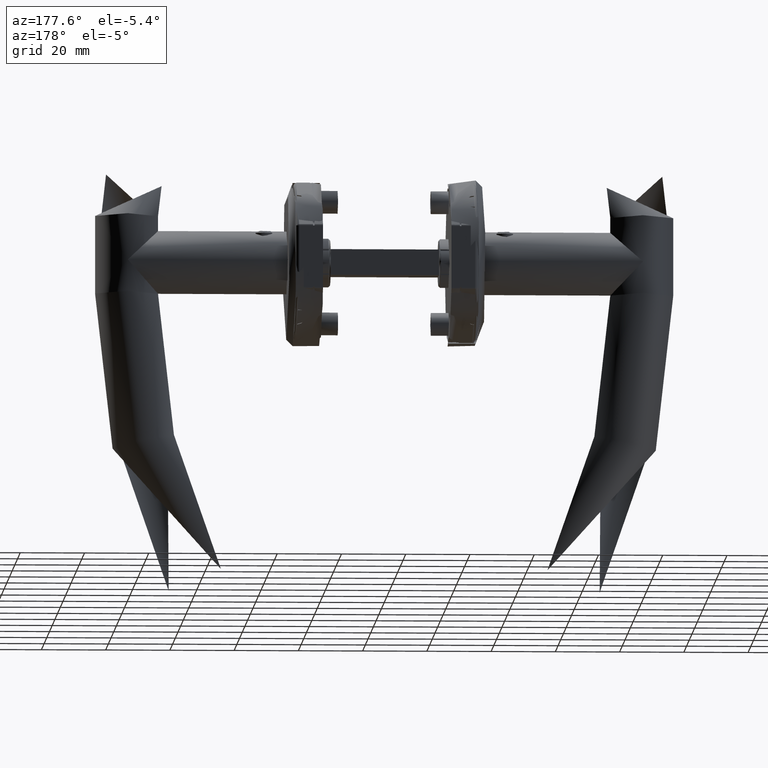
[diagram: clean part render]
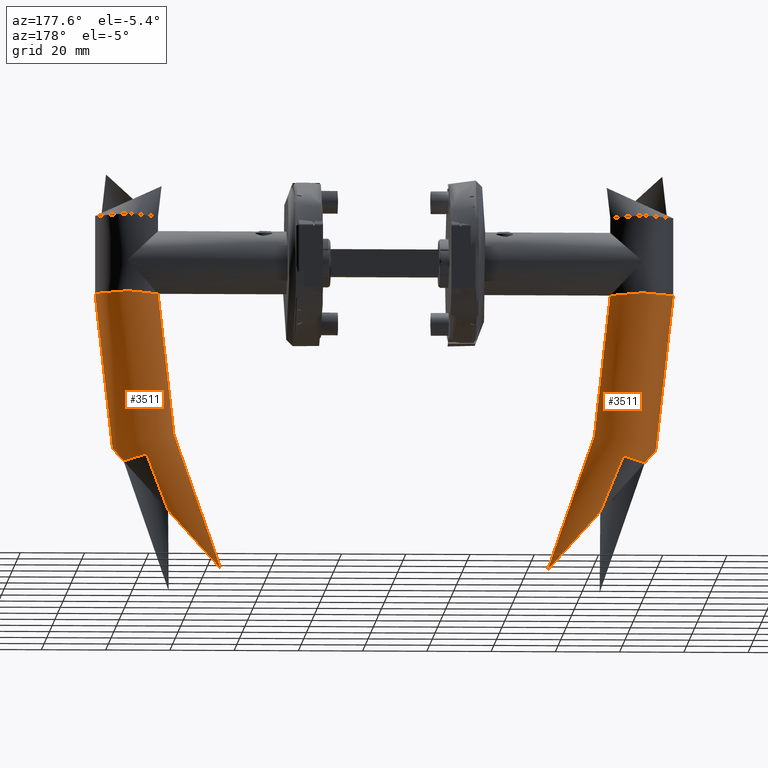
[diagram: same view with one multi-face feature highlighted, each face labeled with its STEP entity id]
A machine part, auxiliary view. The highlighted faces form ONE feature: a constant-radius fillet chain: 2 tangent blend faces with common blend radius 9.8 mm. The faces share edges in the B-rep.
Their STEP definitions:
[1] entity #3511 (Torus):
#88 = CARTESIAN_POINT ( 'NONE',  ( -105.9623395271451800, 4.342501961734758900, 21.72003861807346700 ) ) ;
#154 = CARTESIAN_POINT ( 'NONE',  ( -107.3131726879410800, 7.975893006506974600, 24.49681986952791100 ) ) ;
#242 = CIRCLE ( 'NONE', #2488, 9.800000000000009600 ) ;
#337 = CARTESIAN_POINT ( 'NONE',  ( -113.8759897534047800, 3.162745681215878500, 37.98604177043908700 ) ) ;
#401 = CARTESIAN_POINT ( 'NONE',  ( -112.6404120968331000, -7.385289563334011700, 35.44659419193390400 ) ) ;
#467 = CARTESIAN_POINT ( 'NONE',  ( -108.7015055869238000, 9.473321611347081700, 27.35058206978814300 ) ) ;
#526 = CARTESIAN_POINT ( 'NONE',  ( -106.5782364732321500, -6.476486939788888900, 22.98609377906233700 ) ) ;
#593 = CARTESIAN_POINT ( 'NONE',  ( -109.6697974633651600, -9.800096607207603200, 29.34087671548901400 ) ) ;
#1739 = CARTESIAN_POINT ( 'NONE',  ( -107.1992800815437600, 7.783234746974831500, 24.26270537596450800 ) ) ;
#1864 = CARTESIAN_POINT ( 'NONE',  ( -111.7104459602237400, 8.806204070088293500, 33.53521475938456600 ) ) ;
#1927 = CARTESIAN_POINT ( 'NONE',  ( -113.9857002070428100, -2.229797570106230700, 38.21152300826162200 ) ) ;
#1997 = CARTESIAN_POINT ( 'NONE',  ( -106.9784720455348300, -7.390388360363750100, 23.80881732285658700 ) ) ;
#2065 = CARTESIAN_POINT ( 'NONE',  ( -105.9627567024577100, -4.344504056624677100, 21.72089618291412100 ) ) ;
#2134 = CARTESIAN_POINT ( 'NONE',  ( -110.7821059145488200, -9.549288401787331200, 31.62713435447738800 ) ) ;
#2488 = AXIS2_PLACEMENT_3D ( 'NONE', #6560, #9671, #3456 ) ;
#3152 = CARTESIAN_POINT ( 'NONE',  ( -106.0946052358098400, 4.907340416496543500, 21.99192933579615100 ) ) ;
#3215 = CARTESIAN_POINT ( 'NONE',  ( -105.7481968135598400, 3.164019295167015900, 21.27983604697609000 ) ) ;
#3413 = CARTESIAN_POINT ( 'NONE',  ( -113.7156501658346200, 4.046955982191200900, 37.65650402863948900 ) ) ;
#3420 = EDGE_CURVE ( 'NONE', #9631, #9631, #242, .T. ) ;
#3456 = DIRECTION ( 'NONE',  ( 0.0000000000000000000, 1.151826858672363700E-033, -1.000000000000000000 ) ) ;
#3479 = CARTESIAN_POINT ( 'NONE',  ( -114.0960410210284400, 0.6397666363680479800, 38.43829946893545500 ) ) ;
#3511 = ADVANCED_FACE ( 'NONE', ( #17529, #4306 ), #3818, .T. ) ;
#3553 = CARTESIAN_POINT ( 'NONE',  ( -113.8219313557796000, -3.461376382604557400, 37.87493831712248500 ) ) ;
#3619 = CARTESIAN_POINT ( 'NONE',  ( -113.9579863478264600, 2.548235806558689600, 38.15456443698978700 ) ) ;
#3680 = CARTESIAN_POINT ( 'NONE',  ( -113.6558861264943100, 4.335938311313353400, 37.53367386977634400 ) ) ;
#3818 = TOROIDAL_SURFACE ( 'NONE', #7922, 208.0445454545454700, 9.799999999999997200 ) ;
#3938 = CARTESIAN_POINT ( 'NONE',  ( -105.5210396255808700, 7.047314121155778800E-016, 20.81287743109539800 ) ) ;
#4058 = CARTESIAN_POINT ( 'NONE',  ( -19.59999999999999100, -4.065758146820641600E-017, -157.8445454545456800 ) ) ;
#4306 = FACE_OUTER_BOUND ( 'NONE', #17210, .T. ) ;
#4663 = CARTESIAN_POINT ( 'NONE',  ( -106.4029977812082300, 5.988927555232736600, 22.62587020533610600 ) ) ;
#4924 = CARTESIAN_POINT ( 'NONE',  ( -108.0401836658072800, -8.933617571960491300, 25.99122678355904300 ) ) ;
#4989 = CARTESIAN_POINT ( 'NONE',  ( -110.9196255871230900, -9.470455030706631300, 31.90979032763020800 ) ) ;
#5054 = CARTESIAN_POINT ( 'NONE',  ( -110.0890711757591400, -9.799805428592550900, 30.20266775871953900 ) ) ;
#5118 = CARTESIAN_POINT ( 'NONE',  ( -113.6603429867153100, -4.350899035477192800, 37.54283401119376200 ) ) ;
#5195 = CARTESIAN_POINT ( 'NONE',  ( -112.6427865057234800, 7.380567998343508400, 35.45147431531874100 ) ) ;
#6129 = CARTESIAN_POINT ( 'NONE',  ( -105.5210396255808700, 7.047314121155778800E-016, 20.81287743109539800 ) ) ;
#6191 = CARTESIAN_POINT ( 'NONE',  ( -106.8772089378745600, 7.159162563841299200, 23.60066105548310100 ) ) ;
#6444 = CARTESIAN_POINT ( 'NONE',  ( -113.5285465630406900, -4.913424165470269500, 37.27195882179047000 ) ) ;
#6510 = CARTESIAN_POINT ( 'NONE',  ( -114.0684669655276300, 1.280466425776419100, 38.38162838061127500 ) ) ;
#6560 = CARTESIAN_POINT ( 'NONE',  ( -19.59999999999996600, 0.0000000000000000000, 50.20000000000006700 ) ) ;
#6587 = CARTESIAN_POINT ( 'NONE',  ( -106.1675678666241700, -5.185080569612953400, 22.14191388050648600 ) ) ;
#6655 = CARTESIAN_POINT ( 'NONE',  ( -113.5234881209240400, 4.902180014358160400, 37.26156195718879600 ) ) ;
#6722 = CARTESIAN_POINT ( 'NONE',  ( -111.9512566946696800, -8.494080924388324400, 34.03016109936260100 ) ) ;
#7708 = CARTESIAN_POINT ( 'NONE',  ( -106.9811044058094900, 7.374384440665487300, 23.81422758866263600 ) ) ;
#7774 = CARTESIAN_POINT ( 'NONE',  ( -108.2981640201506100, 9.177592109853778300, 26.52151128804995400 ) ) ;
#7898 = CARTESIAN_POINT ( 'NONE',  ( -110.7822611914154600, 9.549095972133811100, 31.62745349930808900 ) ) ;
#7922 = AXIS2_PLACEMENT_3D ( 'NONE', #4058, #19318, #10207 ) ;
#7964 = CARTESIAN_POINT ( 'NONE',  ( -107.1949605441036800, -7.795155883613743300, 24.25382738392443800 ) ) ;
#8037 = CARTESIAN_POINT ( 'NONE',  ( -109.2484227746456300, 9.737051676310125400, 28.47476118182042600 ) ) ;
#8101 = CARTESIAN_POINT ( 'NONE',  ( -111.4510222572800200, -9.068921336468031700, 33.00200768441730800 ) ) ;
#8175 = CARTESIAN_POINT ( 'NONE',  ( -113.0384158803404800, 6.475940026442631700, 36.26460787980328600 ) ) ;
#8376 = CARTESIAN_POINT ( 'NONE',  ( -105.7403702207520300, -3.160481969075049900, 21.26374754343318700 ) ) ;
#9002 = EDGE_LOOP ( 'NONE', ( #17225 ) ) ;
#9424 = CARTESIAN_POINT ( 'NONE',  ( -112.4221183688494000, 7.794492454045262700, 34.99793424553316600 ) ) ;
#9492 = CARTESIAN_POINT ( 'NONE',  ( -112.0730271484570700, -8.327438042216138900, 34.28043952361656500 ) ) ;
#9553 = CARTESIAN_POINT ( 'NONE',  ( -107.5433287310992500, -8.326970277623797000, 24.96992002279836600 ) ) ;
#9624 = CARTESIAN_POINT ( 'NONE',  ( -113.9516785010862500, -2.540167413894125900, 38.14160026451053700 ) ) ;
#9631 = VERTEX_POINT ( 'NONE', #13614 ) ;
#9671 = DIRECTION ( 'NONE',  ( 1.000000000000000000, 0.0000000000000000000, -2.775557561562878400E-017 ) ) ;
#9690 = CARTESIAN_POINT ( 'NONE',  ( -111.3206914484023100, 9.175635252252201100, 32.73413016710350800 ) ) ;
#9763 = CARTESIAN_POINT ( 'NONE',  ( -105.6592394030283500, -2.549847403412435700, 21.09697000345785200 ) ) ;
#9825 = B_SPLINE_CURVE_WITH_KNOTS ( 'NONE', 3,
 ( #6129, #18428, #18231, #12250, #13645, #3215, #16964, #88, #3152, #13717, #4663, #15242, #6191, #7708, #1739, #154, #13781, #16837, #7774, #10800, #467, #17096, #8037, #12443, #10986, #14180, #7898, #18543, #12713, #9690, #1864, #18484, #9424, #5195, #8175, #15642, #17158, #6655, #3680, #3413, #337, #3619, #6510, #3479, #14244, #14041, #1927, #9624, #15782, #3553, #5118, #6444, #12572, #10924, #14105, #18738, #401, #17228, #9492, #6722, #13975, #8101, #11054, #4989, #2134, #17031, #5054, #593, #12644, #11177, #12507, #18674, #18606, #4924, #15708, #15509, #9553, #7964, #1997, #526, #15576, #6587, #11116, #2065, #14583, #8376, #9763, #18998, #15981, #3938 ),
 .UNSPECIFIED., .T., .F.,
 ( 4, 2, 2, 1, 2, 2, 2, 2, 2, 2, 2, 2, 2, 2, 2, 2, 2, 2, 2, 2, 2, 2, 2, 2, 2, 2, 2, 2, 2, 2, 2, 1, 2, 2, 2, 2, 2, 2, 2, 2, 2, 2, 2, 2, 2, 4 ),
 ( 0.0000000000000000000, 0.001928615833146689100, 0.002892923749720032100, 0.003857231666293375500, 0.004821539582866719000, 0.005785847499440062400, 0.007714463332586754500, 0.008678771249160090200, 0.009643079165733427600, 0.01157169499888009700, 0.01253600291545344300, 0.01350031083202678700, 0.01542892666517344800, 0.01735754249832010800, 0.01832185041489344000, 0.01928615833146677200, 0.02121477416461343300, 0.02314338999776009400, 0.02507200583090675800, 0.02603631374748008000, 0.02700062166405340500, 0.02892923749720006200, 0.03085785333034671600, 0.03278646916349338400, 0.03375077708006671300, 0.03471508499664004200, 0.03664370082978670600, 0.03760800874636003500, 0.03857231666293336300, 0.04050093249608002800, 0.04146524041265334900, 0.04242954832922667100, 0.04339385624580000000, 0.04435816416237332200, 0.04628677999551999300, 0.04725108791209332900, 0.04821539582866665700, 0.05014401166181332200, 0.05110831957838663600, 0.05207262749495995100, 0.05400124332810657400, 0.05592985916125319700, 0.05689416707782651200, 0.05785847499439981900, 0.05978709082754643500, 0.06171570666069305100 ),
 .UNSPECIFIED. ) ;
#10207 = DIRECTION ( 'NONE',  ( 0.0000000000000000000, 3.889170968374537600E-034, -1.000000000000000000 ) ) ;
#10800 = CARTESIAN_POINT ( 'NONE',  ( -108.4318541954522000, 9.286834732237270600, 26.79631313981279600 ) ) ;
#10924 = CARTESIAN_POINT ( 'NONE',  ( -113.2108975698647800, -5.971294066628723300, 36.61910499807856200 ) ) ;
#10986 = CARTESIAN_POINT ( 'NONE',  ( -110.0919964575836200, 9.799836581198517700, 30.20868049674777800 ) ) ;
#11054 = CARTESIAN_POINT ( 'NONE',  ( -111.1879436916442600, -9.284258191927728300, 32.46128493227687500 ) ) ;
#11116 = CARTESIAN_POINT ( 'NONE',  ( -106.0955057805795100, -4.910963421853581100, 21.99378052940285900 ) ) ;
#11177 = CARTESIAN_POINT ( 'NONE',  ( -109.2487089822961400, -9.721537452678475700, 28.47534803754263100 ) ) ;
#12250 = CARTESIAN_POINT ( 'NONE',  ( -105.6317144258488100, 2.235795312702092600, 21.04038788607719500 ) ) ;
#12443 = CARTESIAN_POINT ( 'NONE',  ( -109.5266736960754300, 9.800162794244409200, 29.04669470884710600 ) ) ;
#12507 = CARTESIAN_POINT ( 'NONE',  ( -109.1087296554406700, -9.673980825789428200, 28.18762471151529400 ) ) ;
#12572 = CARTESIAN_POINT ( 'NONE',  ( -113.2950575039206700, -5.711870930661644000, 36.79207652544528200 ) ) ;
#12644 = CARTESIAN_POINT ( 'NONE',  ( -109.5296809762946600, -9.784613488056868000, 29.05287450824557600 ) ) ;
#12713 = CARTESIAN_POINT ( 'NONE',  ( -111.1868543072585000, 9.285126647020687700, 32.45904584671816200 ) ) ;
#12876 = ORIENTED_EDGE ( 'NONE', *, *, #3420, .F. ) ;
#13614 = CARTESIAN_POINT ( 'NONE',  ( -19.59999999999998000, 0.0000000000000000000, 40.39999999999999100 ) ) ;
#13645 = CARTESIAN_POINT ( 'NONE',  ( -105.6663721811650000, 2.550324093523725000, 21.11163253954658700 ) ) ;
#13717 = CARTESIAN_POINT ( 'NONE',  ( -106.1674633134749300, 5.184910772034133900, 22.14169896152793600 ) ) ;
#13781 = CARTESIAN_POINT ( 'NONE',  ( -107.6630217176956000, 8.509130808368395200, 25.21595642441350500 ) ) ;
#13975 = CARTESIAN_POINT ( 'NONE',  ( -111.7037632791850100, -8.796092872902860900, 33.52147829111963500 ) ) ;
#14041 = CARTESIAN_POINT ( 'NONE',  ( -114.0676347629579700, -1.290852283934095000, 38.37991800694239700 ) ) ;
#14105 = CARTESIAN_POINT ( 'NONE',  ( -113.0315285533222500, -6.470338420177319500, 36.25045176016756400 ) ) ;
#14180 = CARTESIAN_POINT ( 'NONE',  ( -110.3715532891084800, 9.735983427800489300, 30.78328608986587200 ) ) ;
#14244 = CARTESIAN_POINT ( 'NONE',  ( -114.0956148235026000, -0.6545180740965332900, 38.43742353323609300 ) ) ;
#14583 = CARTESIAN_POINT ( 'NONE',  ( -105.9018936965907900, -4.050848741572023600, 21.59578336221342500 ) ) ;
#15242 = CARTESIAN_POINT ( 'NONE',  ( -106.5806595600296000, 6.482021291849427800, 22.99107467210709600 ) ) ;
#15509 = CARTESIAN_POINT ( 'NONE',  ( -107.6634197290271100, -8.491593055440638700, 25.21677349755965700 ) ) ;
#15576 = CARTESIAN_POINT ( 'NONE',  ( -106.4004660538973200, -5.980656712907377300, 22.62066592257155800 ) ) ;
#15642 = CARTESIAN_POINT ( 'NONE',  ( -113.2157281594310700, 5.982804266781807100, 36.62903355750746900 ) ) ;
#15708 = CARTESIAN_POINT ( 'NONE',  ( -107.9117334529276500, -8.794919568044738500, 25.72719308417332600 ) ) ;
#15782 = CARTESIAN_POINT ( 'NONE',  ( -113.8699059692394400, -3.155563058425698800, 37.97353788923025800 ) ) ;
#15981 = CARTESIAN_POINT ( 'NONE',  ( -105.5210396255808700, -0.6472253104190791600, 20.81287743109540500 ) ) ;
#16016 = CARTESIAN_POINT ( 'NONE',  ( -105.5210396255808500, 0.0000000000000000000, 20.81287743109539800 ) ) ;
#16837 = CARTESIAN_POINT ( 'NONE',  ( -107.9092549429647100, 8.809616499370088500, 25.72209979227271100 ) ) ;
#16964 = CARTESIAN_POINT ( 'NONE',  ( -105.8427484108795900, 3.765387154636616900, 21.47420156616516700 ) ) ;
#17031 = CARTESIAN_POINT ( 'NONE',  ( -110.3671629105176200, -9.737735587279161100, 30.77426210150836600 ) ) ;
#17096 = CARTESIAN_POINT ( 'NONE',  ( -108.8374309692694300, 9.550787657906278500, 27.62997551162523300 ) ) ;
#17158 = CARTESIAN_POINT ( 'NONE',  ( -113.4504071521652500, 5.180803001728215800, 37.11136149238267000 ) ) ;
#17210 = EDGE_LOOP ( 'NONE', ( #12876 ) ) ;
#17225 = ORIENTED_EDGE ( 'NONE', *, *, #18309, .T. ) ;
#17228 = CARTESIAN_POINT ( 'NONE',  ( -112.4245428801910800, -7.790612413520406700, 35.00291738695224800 ) ) ;
#17529 = FACE_OUTER_BOUND ( 'NONE', #9002, .T. ) ;
#18231 = CARTESIAN_POINT ( 'NONE',  ( -105.5488157405756500, 1.287048662271211200, 20.86997600253950200 ) ) ;
#18309 = EDGE_CURVE ( 'NONE', #18854, #18854, #9825, .T. ) ;
#18428 = CARTESIAN_POINT ( 'NONE',  ( -105.5210396255808800, 0.6472253104191035800, 20.81287743109539100 ) ) ;
#18484 = CARTESIAN_POINT ( 'NONE',  ( -111.9566326409931200, 8.505014669663284000, 34.04121137350064400 ) ) ;
#18543 = CARTESIAN_POINT ( 'NONE',  ( -110.9179504117639400, 9.471503853492317000, 31.90634720321920500 ) ) ;
#18606 = CARTESIAN_POINT ( 'NONE',  ( -108.4293351244981800, -9.301461401277244100, 26.79113647168205500 ) ) ;
#18674 = CARTESIAN_POINT ( 'NONE',  ( -108.6964877548678600, -9.486425250784762400, 27.34026942841878600 ) ) ;
#18738 = CARTESIAN_POINT ( 'NONE',  ( -112.9371560997596500, -6.707823522771136900, 36.05648955648684500 ) ) ;
#18854 = VERTEX_POINT ( 'NONE', #16016 ) ;
#18998 = CARTESIAN_POINT ( 'NONE',  ( -105.5494172839514600, -1.294890510834880300, 20.87121257467251600 ) ) ;
#19318 = DIRECTION ( 'NONE',  ( 0.0000000000000000000, -1.000000000000000000, -3.889170968374537600E-034 ) ) ;
[2] entity #3511 (Torus):
#88 = CARTESIAN_POINT ( 'NONE',  ( -105.9623395271451800, 4.342501961734758900, 21.72003861807346700 ) ) ;
#154 = CARTESIAN_POINT ( 'NONE',  ( -107.3131726879410800, 7.975893006506974600, 24.49681986952791100 ) ) ;
#242 = CIRCLE ( 'NONE', #2488, 9.800000000000009600 ) ;
#337 = CARTESIAN_POINT ( 'NONE',  ( -113.8759897534047800, 3.162745681215878500, 37.98604177043908700 ) ) ;
#401 = CARTESIAN_POINT ( 'NONE',  ( -112.6404120968331000, -7.385289563334011700, 35.44659419193390400 ) ) ;
#467 = CARTESIAN_POINT ( 'NONE',  ( -108.7015055869238000, 9.473321611347081700, 27.35058206978814300 ) ) ;
#526 = CARTESIAN_POINT ( 'NONE',  ( -106.5782364732321500, -6.476486939788888900, 22.98609377906233700 ) ) ;
#593 = CARTESIAN_POINT ( 'NONE',  ( -109.6697974633651600, -9.800096607207603200, 29.34087671548901400 ) ) ;
#1739 = CARTESIAN_POINT ( 'NONE',  ( -107.1992800815437600, 7.783234746974831500, 24.26270537596450800 ) ) ;
#1864 = CARTESIAN_POINT ( 'NONE',  ( -111.7104459602237400, 8.806204070088293500, 33.53521475938456600 ) ) ;
#1927 = CARTESIAN_POINT ( 'NONE',  ( -113.9857002070428100, -2.229797570106230700, 38.21152300826162200 ) ) ;
#1997 = CARTESIAN_POINT ( 'NONE',  ( -106.9784720455348300, -7.390388360363750100, 23.80881732285658700 ) ) ;
#2065 = CARTESIAN_POINT ( 'NONE',  ( -105.9627567024577100, -4.344504056624677100, 21.72089618291412100 ) ) ;
#2134 = CARTESIAN_POINT ( 'NONE',  ( -110.7821059145488200, -9.549288401787331200, 31.62713435447738800 ) ) ;
#2488 = AXIS2_PLACEMENT_3D ( 'NONE', #6560, #9671, #3456 ) ;
#3152 = CARTESIAN_POINT ( 'NONE',  ( -106.0946052358098400, 4.907340416496543500, 21.99192933579615100 ) ) ;
#3215 = CARTESIAN_POINT ( 'NONE',  ( -105.7481968135598400, 3.164019295167015900, 21.27983604697609000 ) ) ;
#3413 = CARTESIAN_POINT ( 'NONE',  ( -113.7156501658346200, 4.046955982191200900, 37.65650402863948900 ) ) ;
#3420 = EDGE_CURVE ( 'NONE', #9631, #9631, #242, .T. ) ;
#3456 = DIRECTION ( 'NONE',  ( 0.0000000000000000000, 1.151826858672363700E-033, -1.000000000000000000 ) ) ;
#3479 = CARTESIAN_POINT ( 'NONE',  ( -114.0960410210284400, 0.6397666363680479800, 38.43829946893545500 ) ) ;
#3511 = ADVANCED_FACE ( 'NONE', ( #17529, #4306 ), #3818, .T. ) ;
#3553 = CARTESIAN_POINT ( 'NONE',  ( -113.8219313557796000, -3.461376382604557400, 37.87493831712248500 ) ) ;
#3619 = CARTESIAN_POINT ( 'NONE',  ( -113.9579863478264600, 2.548235806558689600, 38.15456443698978700 ) ) ;
#3680 = CARTESIAN_POINT ( 'NONE',  ( -113.6558861264943100, 4.335938311313353400, 37.53367386977634400 ) ) ;
#3818 = TOROIDAL_SURFACE ( 'NONE', #7922, 208.0445454545454700, 9.799999999999997200 ) ;
#3938 = CARTESIAN_POINT ( 'NONE',  ( -105.5210396255808700, 7.047314121155778800E-016, 20.81287743109539800 ) ) ;
#4058 = CARTESIAN_POINT ( 'NONE',  ( -19.59999999999999100, -4.065758146820641600E-017, -157.8445454545456800 ) ) ;
#4306 = FACE_OUTER_BOUND ( 'NONE', #17210, .T. ) ;
#4663 = CARTESIAN_POINT ( 'NONE',  ( -106.4029977812082300, 5.988927555232736600, 22.62587020533610600 ) ) ;
#4924 = CARTESIAN_POINT ( 'NONE',  ( -108.0401836658072800, -8.933617571960491300, 25.99122678355904300 ) ) ;
#4989 = CARTESIAN_POINT ( 'NONE',  ( -110.9196255871230900, -9.470455030706631300, 31.90979032763020800 ) ) ;
#5054 = CARTESIAN_POINT ( 'NONE',  ( -110.0890711757591400, -9.799805428592550900, 30.20266775871953900 ) ) ;
#5118 = CARTESIAN_POINT ( 'NONE',  ( -113.6603429867153100, -4.350899035477192800, 37.54283401119376200 ) ) ;
#5195 = CARTESIAN_POINT ( 'NONE',  ( -112.6427865057234800, 7.380567998343508400, 35.45147431531874100 ) ) ;
#6129 = CARTESIAN_POINT ( 'NONE',  ( -105.5210396255808700, 7.047314121155778800E-016, 20.81287743109539800 ) ) ;
#6191 = CARTESIAN_POINT ( 'NONE',  ( -106.8772089378745600, 7.159162563841299200, 23.60066105548310100 ) ) ;
#6444 = CARTESIAN_POINT ( 'NONE',  ( -113.5285465630406900, -4.913424165470269500, 37.27195882179047000 ) ) ;
#6510 = CARTESIAN_POINT ( 'NONE',  ( -114.0684669655276300, 1.280466425776419100, 38.38162838061127500 ) ) ;
#6560 = CARTESIAN_POINT ( 'NONE',  ( -19.59999999999996600, 0.0000000000000000000, 50.20000000000006700 ) ) ;
#6587 = CARTESIAN_POINT ( 'NONE',  ( -106.1675678666241700, -5.185080569612953400, 22.14191388050648600 ) ) ;
#6655 = CARTESIAN_POINT ( 'NONE',  ( -113.5234881209240400, 4.902180014358160400, 37.26156195718879600 ) ) ;
#6722 = CARTESIAN_POINT ( 'NONE',  ( -111.9512566946696800, -8.494080924388324400, 34.03016109936260100 ) ) ;
#7708 = CARTESIAN_POINT ( 'NONE',  ( -106.9811044058094900, 7.374384440665487300, 23.81422758866263600 ) ) ;
#7774 = CARTESIAN_POINT ( 'NONE',  ( -108.2981640201506100, 9.177592109853778300, 26.52151128804995400 ) ) ;
#7898 = CARTESIAN_POINT ( 'NONE',  ( -110.7822611914154600, 9.549095972133811100, 31.62745349930808900 ) ) ;
#7922 = AXIS2_PLACEMENT_3D ( 'NONE', #4058, #19318, #10207 ) ;
#7964 = CARTESIAN_POINT ( 'NONE',  ( -107.1949605441036800, -7.795155883613743300, 24.25382738392443800 ) ) ;
#8037 = CARTESIAN_POINT ( 'NONE',  ( -109.2484227746456300, 9.737051676310125400, 28.47476118182042600 ) ) ;
#8101 = CARTESIAN_POINT ( 'NONE',  ( -111.4510222572800200, -9.068921336468031700, 33.00200768441730800 ) ) ;
#8175 = CARTESIAN_POINT ( 'NONE',  ( -113.0384158803404800, 6.475940026442631700, 36.26460787980328600 ) ) ;
#8376 = CARTESIAN_POINT ( 'NONE',  ( -105.7403702207520300, -3.160481969075049900, 21.26374754343318700 ) ) ;
#9002 = EDGE_LOOP ( 'NONE', ( #17225 ) ) ;
#9424 = CARTESIAN_POINT ( 'NONE',  ( -112.4221183688494000, 7.794492454045262700, 34.99793424553316600 ) ) ;
#9492 = CARTESIAN_POINT ( 'NONE',  ( -112.0730271484570700, -8.327438042216138900, 34.28043952361656500 ) ) ;
#9553 = CARTESIAN_POINT ( 'NONE',  ( -107.5433287310992500, -8.326970277623797000, 24.96992002279836600 ) ) ;
#9624 = CARTESIAN_POINT ( 'NONE',  ( -113.9516785010862500, -2.540167413894125900, 38.14160026451053700 ) ) ;
#9631 = VERTEX_POINT ( 'NONE', #13614 ) ;
#9671 = DIRECTION ( 'NONE',  ( 1.000000000000000000, 0.0000000000000000000, -2.775557561562878400E-017 ) ) ;
#9690 = CARTESIAN_POINT ( 'NONE',  ( -111.3206914484023100, 9.175635252252201100, 32.73413016710350800 ) ) ;
#9763 = CARTESIAN_POINT ( 'NONE',  ( -105.6592394030283500, -2.549847403412435700, 21.09697000345785200 ) ) ;
#9825 = B_SPLINE_CURVE_WITH_KNOTS ( 'NONE', 3,
 ( #6129, #18428, #18231, #12250, #13645, #3215, #16964, #88, #3152, #13717, #4663, #15242, #6191, #7708, #1739, #154, #13781, #16837, #7774, #10800, #467, #17096, #8037, #12443, #10986, #14180, #7898, #18543, #12713, #9690, #1864, #18484, #9424, #5195, #8175, #15642, #17158, #6655, #3680, #3413, #337, #3619, #6510, #3479, #14244, #14041, #1927, #9624, #15782, #3553, #5118, #6444, #12572, #10924, #14105, #18738, #401, #17228, #9492, #6722, #13975, #8101, #11054, #4989, #2134, #17031, #5054, #593, #12644, #11177, #12507, #18674, #18606, #4924, #15708, #15509, #9553, #7964, #1997, #526, #15576, #6587, #11116, #2065, #14583, #8376, #9763, #18998, #15981, #3938 ),
 .UNSPECIFIED., .T., .F.,
 ( 4, 2, 2, 1, 2, 2, 2, 2, 2, 2, 2, 2, 2, 2, 2, 2, 2, 2, 2, 2, 2, 2, 2, 2, 2, 2, 2, 2, 2, 2, 2, 1, 2, 2, 2, 2, 2, 2, 2, 2, 2, 2, 2, 2, 2, 4 ),
 ( 0.0000000000000000000, 0.001928615833146689100, 0.002892923749720032100, 0.003857231666293375500, 0.004821539582866719000, 0.005785847499440062400, 0.007714463332586754500, 0.008678771249160090200, 0.009643079165733427600, 0.01157169499888009700, 0.01253600291545344300, 0.01350031083202678700, 0.01542892666517344800, 0.01735754249832010800, 0.01832185041489344000, 0.01928615833146677200, 0.02121477416461343300, 0.02314338999776009400, 0.02507200583090675800, 0.02603631374748008000, 0.02700062166405340500, 0.02892923749720006200, 0.03085785333034671600, 0.03278646916349338400, 0.03375077708006671300, 0.03471508499664004200, 0.03664370082978670600, 0.03760800874636003500, 0.03857231666293336300, 0.04050093249608002800, 0.04146524041265334900, 0.04242954832922667100, 0.04339385624580000000, 0.04435816416237332200, 0.04628677999551999300, 0.04725108791209332900, 0.04821539582866665700, 0.05014401166181332200, 0.05110831957838663600, 0.05207262749495995100, 0.05400124332810657400, 0.05592985916125319700, 0.05689416707782651200, 0.05785847499439981900, 0.05978709082754643500, 0.06171570666069305100 ),
 .UNSPECIFIED. ) ;
#10207 = DIRECTION ( 'NONE',  ( 0.0000000000000000000, 3.889170968374537600E-034, -1.000000000000000000 ) ) ;
#10800 = CARTESIAN_POINT ( 'NONE',  ( -108.4318541954522000, 9.286834732237270600, 26.79631313981279600 ) ) ;
#10924 = CARTESIAN_POINT ( 'NONE',  ( -113.2108975698647800, -5.971294066628723300, 36.61910499807856200 ) ) ;
#10986 = CARTESIAN_POINT ( 'NONE',  ( -110.0919964575836200, 9.799836581198517700, 30.20868049674777800 ) ) ;
#11054 = CARTESIAN_POINT ( 'NONE',  ( -111.1879436916442600, -9.284258191927728300, 32.46128493227687500 ) ) ;
#11116 = CARTESIAN_POINT ( 'NONE',  ( -106.0955057805795100, -4.910963421853581100, 21.99378052940285900 ) ) ;
#11177 = CARTESIAN_POINT ( 'NONE',  ( -109.2487089822961400, -9.721537452678475700, 28.47534803754263100 ) ) ;
#12250 = CARTESIAN_POINT ( 'NONE',  ( -105.6317144258488100, 2.235795312702092600, 21.04038788607719500 ) ) ;
#12443 = CARTESIAN_POINT ( 'NONE',  ( -109.5266736960754300, 9.800162794244409200, 29.04669470884710600 ) ) ;
#12507 = CARTESIAN_POINT ( 'NONE',  ( -109.1087296554406700, -9.673980825789428200, 28.18762471151529400 ) ) ;
#12572 = CARTESIAN_POINT ( 'NONE',  ( -113.2950575039206700, -5.711870930661644000, 36.79207652544528200 ) ) ;
#12644 = CARTESIAN_POINT ( 'NONE',  ( -109.5296809762946600, -9.784613488056868000, 29.05287450824557600 ) ) ;
#12713 = CARTESIAN_POINT ( 'NONE',  ( -111.1868543072585000, 9.285126647020687700, 32.45904584671816200 ) ) ;
#12876 = ORIENTED_EDGE ( 'NONE', *, *, #3420, .F. ) ;
#13614 = CARTESIAN_POINT ( 'NONE',  ( -19.59999999999998000, 0.0000000000000000000, 40.39999999999999100 ) ) ;
#13645 = CARTESIAN_POINT ( 'NONE',  ( -105.6663721811650000, 2.550324093523725000, 21.11163253954658700 ) ) ;
#13717 = CARTESIAN_POINT ( 'NONE',  ( -106.1674633134749300, 5.184910772034133900, 22.14169896152793600 ) ) ;
#13781 = CARTESIAN_POINT ( 'NONE',  ( -107.6630217176956000, 8.509130808368395200, 25.21595642441350500 ) ) ;
#13975 = CARTESIAN_POINT ( 'NONE',  ( -111.7037632791850100, -8.796092872902860900, 33.52147829111963500 ) ) ;
#14041 = CARTESIAN_POINT ( 'NONE',  ( -114.0676347629579700, -1.290852283934095000, 38.37991800694239700 ) ) ;
#14105 = CARTESIAN_POINT ( 'NONE',  ( -113.0315285533222500, -6.470338420177319500, 36.25045176016756400 ) ) ;
#14180 = CARTESIAN_POINT ( 'NONE',  ( -110.3715532891084800, 9.735983427800489300, 30.78328608986587200 ) ) ;
#14244 = CARTESIAN_POINT ( 'NONE',  ( -114.0956148235026000, -0.6545180740965332900, 38.43742353323609300 ) ) ;
#14583 = CARTESIAN_POINT ( 'NONE',  ( -105.9018936965907900, -4.050848741572023600, 21.59578336221342500 ) ) ;
#15242 = CARTESIAN_POINT ( 'NONE',  ( -106.5806595600296000, 6.482021291849427800, 22.99107467210709600 ) ) ;
#15509 = CARTESIAN_POINT ( 'NONE',  ( -107.6634197290271100, -8.491593055440638700, 25.21677349755965700 ) ) ;
#15576 = CARTESIAN_POINT ( 'NONE',  ( -106.4004660538973200, -5.980656712907377300, 22.62066592257155800 ) ) ;
#15642 = CARTESIAN_POINT ( 'NONE',  ( -113.2157281594310700, 5.982804266781807100, 36.62903355750746900 ) ) ;
#15708 = CARTESIAN_POINT ( 'NONE',  ( -107.9117334529276500, -8.794919568044738500, 25.72719308417332600 ) ) ;
#15782 = CARTESIAN_POINT ( 'NONE',  ( -113.8699059692394400, -3.155563058425698800, 37.97353788923025800 ) ) ;
#15981 = CARTESIAN_POINT ( 'NONE',  ( -105.5210396255808700, -0.6472253104190791600, 20.81287743109540500 ) ) ;
#16016 = CARTESIAN_POINT ( 'NONE',  ( -105.5210396255808500, 0.0000000000000000000, 20.81287743109539800 ) ) ;
#16837 = CARTESIAN_POINT ( 'NONE',  ( -107.9092549429647100, 8.809616499370088500, 25.72209979227271100 ) ) ;
#16964 = CARTESIAN_POINT ( 'NONE',  ( -105.8427484108795900, 3.765387154636616900, 21.47420156616516700 ) ) ;
#17031 = CARTESIAN_POINT ( 'NONE',  ( -110.3671629105176200, -9.737735587279161100, 30.77426210150836600 ) ) ;
#17096 = CARTESIAN_POINT ( 'NONE',  ( -108.8374309692694300, 9.550787657906278500, 27.62997551162523300 ) ) ;
#17158 = CARTESIAN_POINT ( 'NONE',  ( -113.4504071521652500, 5.180803001728215800, 37.11136149238267000 ) ) ;
#17210 = EDGE_LOOP ( 'NONE', ( #12876 ) ) ;
#17225 = ORIENTED_EDGE ( 'NONE', *, *, #18309, .T. ) ;
#17228 = CARTESIAN_POINT ( 'NONE',  ( -112.4245428801910800, -7.790612413520406700, 35.00291738695224800 ) ) ;
#17529 = FACE_OUTER_BOUND ( 'NONE', #9002, .T. ) ;
#18231 = CARTESIAN_POINT ( 'NONE',  ( -105.5488157405756500, 1.287048662271211200, 20.86997600253950200 ) ) ;
#18309 = EDGE_CURVE ( 'NONE', #18854, #18854, #9825, .T. ) ;
#18428 = CARTESIAN_POINT ( 'NONE',  ( -105.5210396255808800, 0.6472253104191035800, 20.81287743109539100 ) ) ;
#18484 = CARTESIAN_POINT ( 'NONE',  ( -111.9566326409931200, 8.505014669663284000, 34.04121137350064400 ) ) ;
#18543 = CARTESIAN_POINT ( 'NONE',  ( -110.9179504117639400, 9.471503853492317000, 31.90634720321920500 ) ) ;
#18606 = CARTESIAN_POINT ( 'NONE',  ( -108.4293351244981800, -9.301461401277244100, 26.79113647168205500 ) ) ;
#18674 = CARTESIAN_POINT ( 'NONE',  ( -108.6964877548678600, -9.486425250784762400, 27.34026942841878600 ) ) ;
#18738 = CARTESIAN_POINT ( 'NONE',  ( -112.9371560997596500, -6.707823522771136900, 36.05648955648684500 ) ) ;
#18854 = VERTEX_POINT ( 'NONE', #16016 ) ;
#18998 = CARTESIAN_POINT ( 'NONE',  ( -105.5494172839514600, -1.294890510834880300, 20.87121257467251600 ) ) ;
#19318 = DIRECTION ( 'NONE',  ( 0.0000000000000000000, -1.000000000000000000, -3.889170968374537600E-034 ) ) ;